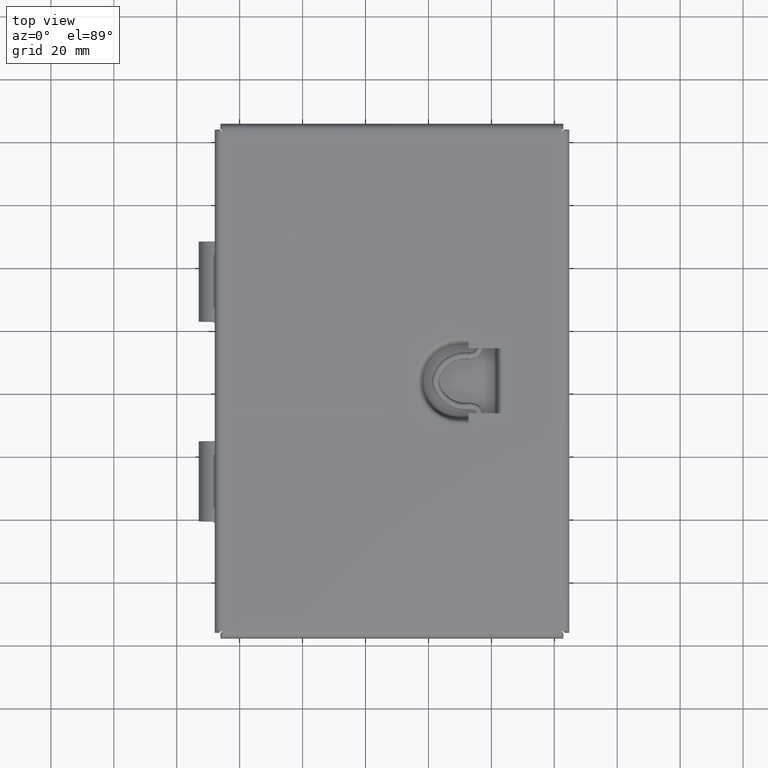
[diagram: clean part render]
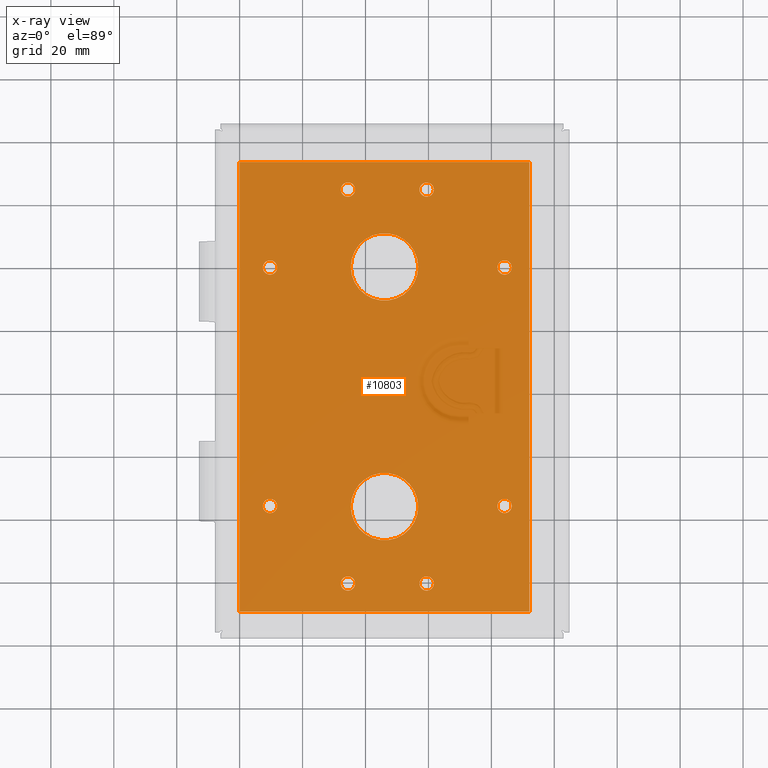
[diagram: x-ray — body ghosted, one internal face saturated and labeled with its STEP entity id]
A machine part, top view, then the same camera in x-ray: the body is ghosted and one INTERNAL B-rep face — a face not visible from any outside direction — is saturated and labeled: STEP entity #10803.
In plain terms, the highlighted planar face has unit normal (0, 0, -1).
Its self-contained STEP definition (entity closure, byte-faithful):
#454=LINE($,#15159,#1484);
#455=LINE($,#15161,#1485);
#456=LINE($,#15163,#1486);
#457=LINE($,#15164,#1487);
#1484=VECTOR($,#12362,3.625);
#1485=VECTOR($,#12363,5.625);
#1486=VECTOR($,#12364,3.625);
#1487=VECTOR($,#12365,5.625);
#2514=PLANE($,#11462);
#2889=FACE_BOUND($,#3650,.T.);
#2890=FACE_BOUND($,#3651,.T.);
#2891=FACE_BOUND($,#3652,.T.);
#2892=FACE_BOUND($,#3653,.T.);
#2893=FACE_BOUND($,#3654,.T.);
#2894=FACE_BOUND($,#3655,.T.);
#2895=FACE_BOUND($,#3656,.T.);
#2896=FACE_BOUND($,#3657,.T.);
#2897=FACE_BOUND($,#3658,.T.);
#2898=FACE_BOUND($,#3659,.T.);
#2899=FACE_BOUND($,#3660,.T.);
#3650=EDGE_LOOP($,(#7095));
#3651=EDGE_LOOP($,(#7096));
#3652=EDGE_LOOP($,(#7097));
#3653=EDGE_LOOP($,(#7098));
#3654=EDGE_LOOP($,(#7099));
#3655=EDGE_LOOP($,(#7100,#7101,#7102,#7103));
#3656=EDGE_LOOP($,(#7104));
#3657=EDGE_LOOP($,(#7105));
#3658=EDGE_LOOP($,(#7106));
#3659=EDGE_LOOP($,(#7107));
#3660=EDGE_LOOP($,(#7108));
#4408=CIRCLE($,#11460,0.421875);
#4410=CIRCLE($,#11463,0.421875);
#4411=CIRCLE($,#11464,0.0898817580215498);
#4412=CIRCLE($,#11465,0.0898817580215498);
#4413=CIRCLE($,#11466,0.0898817580215498);
#4414=CIRCLE($,#11467,0.0898817580215498);
#4415=CIRCLE($,#11468,0.0898817580215499);
#4416=CIRCLE($,#11469,0.0898817580215498);
#4417=CIRCLE($,#11470,0.0898817580215498);
#4418=CIRCLE($,#11471,0.0898817580215499);
#4687=VERTEX_POINT($,#15142);
#4689=VERTEX_POINT($,#15147);
#4690=VERTEX_POINT($,#15149);
#4691=VERTEX_POINT($,#15151);
#4692=VERTEX_POINT($,#15153);
#4693=VERTEX_POINT($,#15155);
#4694=VERTEX_POINT($,#15157);
#4695=VERTEX_POINT($,#15158);
#4696=VERTEX_POINT($,#15160);
#4697=VERTEX_POINT($,#15162);
#4698=VERTEX_POINT($,#15165);
#4699=VERTEX_POINT($,#15167);
#4700=VERTEX_POINT($,#15169);
#4701=VERTEX_POINT($,#15171);
#5618=EDGE_CURVE($,#4687,#4687,#4408,.T.);
#5620=EDGE_CURVE($,#4689,#4689,#4410,.T.);
#5621=EDGE_CURVE($,#4690,#4690,#4411,.T.);
#5622=EDGE_CURVE($,#4691,#4691,#4412,.T.);
#5623=EDGE_CURVE($,#4692,#4692,#4413,.T.);
#5624=EDGE_CURVE($,#4693,#4693,#4414,.T.);
#5625=EDGE_CURVE($,#4694,#4695,#454,.T.);
#5626=EDGE_CURVE($,#4696,#4694,#455,.T.);
#5627=EDGE_CURVE($,#4697,#4696,#456,.T.);
#5628=EDGE_CURVE($,#4695,#4697,#457,.T.);
#5629=EDGE_CURVE($,#4698,#4698,#4415,.T.);
#5630=EDGE_CURVE($,#4699,#4699,#4416,.T.);
#5631=EDGE_CURVE($,#4700,#4700,#4417,.T.);
#5632=EDGE_CURVE($,#4701,#4701,#4418,.T.);
#7095=ORIENTED_EDGE($,*,*,#5620,.F.);
#7096=ORIENTED_EDGE($,*,*,#5621,.F.);
#7097=ORIENTED_EDGE($,*,*,#5622,.F.);
#7098=ORIENTED_EDGE($,*,*,#5623,.F.);
#7099=ORIENTED_EDGE($,*,*,#5624,.F.);
#7100=ORIENTED_EDGE($,*,*,#5625,.F.);
#7101=ORIENTED_EDGE($,*,*,#5626,.F.);
#7102=ORIENTED_EDGE($,*,*,#5627,.F.);
#7103=ORIENTED_EDGE($,*,*,#5628,.F.);
#7104=ORIENTED_EDGE($,*,*,#5629,.F.);
#7105=ORIENTED_EDGE($,*,*,#5630,.F.);
#7106=ORIENTED_EDGE($,*,*,#5631,.F.);
#7107=ORIENTED_EDGE($,*,*,#5632,.F.);
#7108=ORIENTED_EDGE($,*,*,#5618,.F.);
#10803=ADVANCED_FACE($,(#2889,#2890,#2891,#2892,#2893,#2894,#2895,#2896,
#2897,#2898,#2899),#2514,.F.);
#11460=AXIS2_PLACEMENT_3D($,#15143,#12346,#12347);
#11462=AXIS2_PLACEMENT_3D($,#15146,#12350,#12351);
#11463=AXIS2_PLACEMENT_3D($,#15148,#12352,#12353);
#11464=AXIS2_PLACEMENT_3D($,#15150,#12354,#12355);
#11465=AXIS2_PLACEMENT_3D($,#15152,#12356,#12357);
#11466=AXIS2_PLACEMENT_3D($,#15154,#12358,#12359);
#11467=AXIS2_PLACEMENT_3D($,#15156,#12360,#12361);
#11468=AXIS2_PLACEMENT_3D($,#15166,#12366,#12367);
#11469=AXIS2_PLACEMENT_3D($,#15168,#12368,#12369);
#11470=AXIS2_PLACEMENT_3D($,#15170,#12370,#12371);
#11471=AXIS2_PLACEMENT_3D($,#15172,#12372,#12373);
#12346=DIRECTION('center_axis',(0.,-3.06161699786838E-017,-1.));
#12347=DIRECTION('ref_axis',(-1.,0.,0.));
#12350=DIRECTION('center_axis',(0.,0.,1.));
#12351=DIRECTION('ref_axis',(1.,0.,0.));
#12352=DIRECTION('center_axis',(0.,-3.06161699786838E-017,-1.));
#12353=DIRECTION('ref_axis',(-1.,0.,0.));
#12354=DIRECTION('center_axis',(3.6288475009662E-033,-3.06161699786838E-017,
-1.));
#12355=DIRECTION('ref_axis',(1.,0.,3.6288475009662E-033));
#12356=DIRECTION('center_axis',(3.6288475009662E-033,-3.06161699786838E-017,
-1.));
#12357=DIRECTION('ref_axis',(1.,0.,3.6288475009662E-033));
#12358=DIRECTION('center_axis',(3.6288475009662E-033,-3.06161699786838E-017,
-1.));
#12359=DIRECTION('ref_axis',(1.,0.,3.6288475009662E-033));
#12360=DIRECTION('center_axis',(3.6288475009662E-033,-3.06161699786838E-017,
-1.));
#12361=DIRECTION('ref_axis',(1.,0.,3.6288475009662E-033));
#12362=DIRECTION($,(1.,0.,0.));
#12363=DIRECTION($,(3.06161699786838E-016,-1.,0.));
#12364=DIRECTION($,(-1.,0.,0.));
#12365=DIRECTION($,(0.,1.,0.));
#12366=DIRECTION('center_axis',(3.6288475009662E-033,-3.06161699786838E-017,
-1.));
#12367=DIRECTION('ref_axis',(1.,0.,3.6288475009662E-033));
#12368=DIRECTION('center_axis',(3.6288475009662E-033,-3.06161699786838E-017,
-1.));
#12369=DIRECTION('ref_axis',(1.,0.,3.6288475009662E-033));
#12370=DIRECTION('center_axis',(3.6288475009662E-033,-3.06161699786838E-017,
-1.));
#12371=DIRECTION('ref_axis',(1.,0.,3.6288475009662E-033));
#12372=DIRECTION('center_axis',(3.6288475009662E-033,-3.06161699786838E-017,
-1.));
#12373=DIRECTION('ref_axis',(1.,0.,3.6288475009662E-033));
#15142=CARTESIAN_POINT('',(1.390625,1.3125,0.));
#15143=CARTESIAN_POINT('Origin',(1.8125,1.3125,4.37095678986282E-017));
#15146=CARTESIAN_POINT('Origin',(1.8125,2.8125,0.));
#15147=CARTESIAN_POINT('',(1.390625,4.3125,0.));
#15148=CARTESIAN_POINT('Origin',(1.8125,4.3125,-4.37095678986282E-017));
#15149=CARTESIAN_POINT('',(1.26512693737101,0.345,6.55643518479423E-017));
#15150=CARTESIAN_POINT('Origin',(1.35500869539256,0.345,7.64917438225994E-017));
#15151=CARTESIAN_POINT('',(3.22512693737101,1.32,6.55643518479423E-017));
#15152=CARTESIAN_POINT('Origin',(3.31500869539256,1.32,4.64414158922925E-017));
#15153=CARTESIAN_POINT('',(2.25012693737101,5.275,6.55643518479423E-017));
#15154=CARTESIAN_POINT('Origin',(2.34000869539256,5.275,-7.64917438225994E-017));
#15155=CARTESIAN_POINT('',(1.26512693737101,5.275,6.55643518479423E-017));
#15156=CARTESIAN_POINT('Origin',(1.35500869539256,5.275,-7.64917438225994E-017));
#15157=CARTESIAN_POINT('',(0.,0.,0.));
#15158=CARTESIAN_POINT('',(3.625,0.,0.));
#15159=CARTESIAN_POINT($,(0.,0.,0.));
#15160=CARTESIAN_POINT('',(-1.72215956130097E-015,5.625,0.));
#15161=CARTESIAN_POINT($,(-1.72215956130097E-015,5.625,0.));
#15162=CARTESIAN_POINT('',(3.625,5.625,0.));
#15163=CARTESIAN_POINT($,(3.625,5.625,0.));
#15164=CARTESIAN_POINT($,(3.625,0.,0.));
#15165=CARTESIAN_POINT('',(0.290126937371008,4.305,6.55643518479423E-017));
#15166=CARTESIAN_POINT('Origin',(0.380008695392558,4.305,-4.64414158922925E-017));
#15167=CARTESIAN_POINT('',(3.22512693737101,4.305,6.55643518479423E-017));
#15168=CARTESIAN_POINT('Origin',(3.31500869539256,4.305,-4.64414158922925E-017));
#15169=CARTESIAN_POINT('',(2.25012693737101,0.345,6.55643518479423E-017));
#15170=CARTESIAN_POINT('Origin',(2.34000869539256,0.345,7.64917438225994E-017));
#15171=CARTESIAN_POINT('',(0.290126937371007,1.32,6.55643518479423E-017));
#15172=CARTESIAN_POINT('Origin',(0.380008695392557,1.32,4.64414158922925E-017));